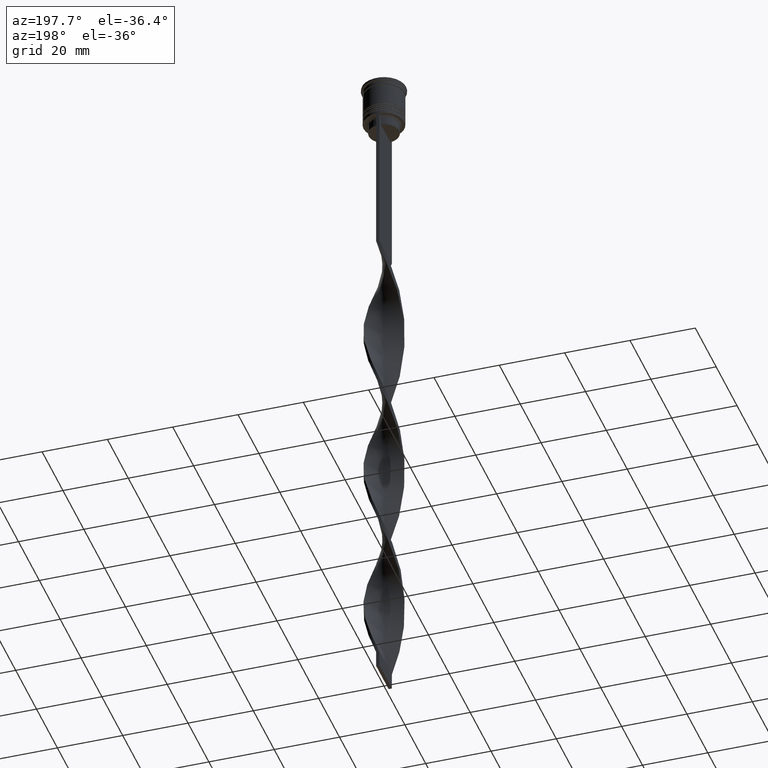
[diagram: clean part render]
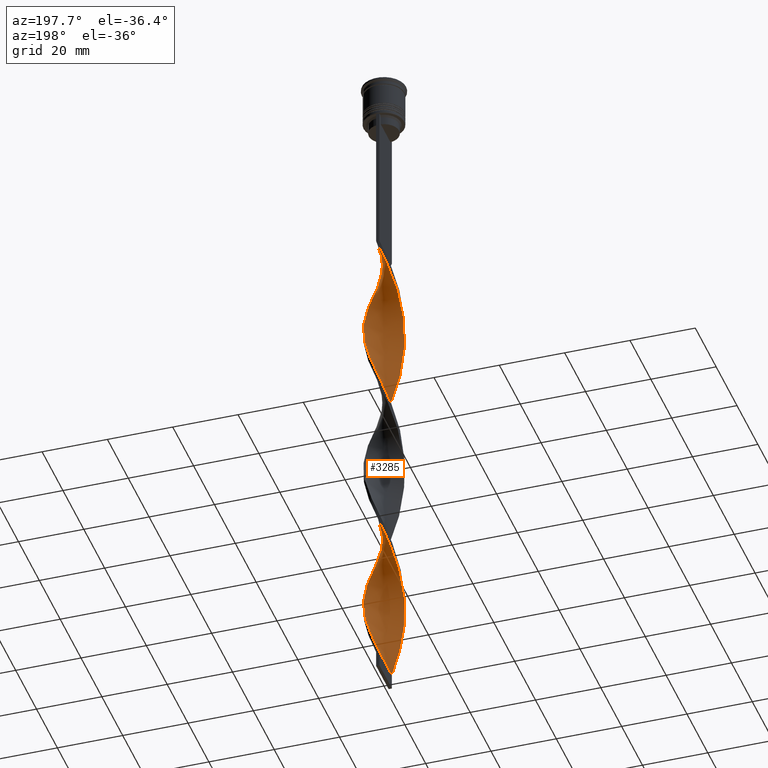
[diagram: same view with one face highlighted and labeled with its STEP entity id]
A machine part, auxiliary view. The second image highlights one B-rep face of the part: STEP entity #3285.
In plain terms, the highlighted face is a freeform B-spline surface patch.
Its self-contained STEP definition (entity closure, byte-faithful):
#3 = CARTESIAN_POINT ( 'NONE',  ( 2.733484409399326687, 5.364518895816362765, -99.40196078431372939 ) ) ;
#8 = CARTESIAN_POINT ( 'NONE',  ( 4.032016302638261607, -4.506007880724164139, -68.72549019607842524 ) ) ;
#16 = CARTESIAN_POINT ( 'NONE',  ( -5.800196826636243586, -1.708502050969748609, -188.5098039215686185 ) ) ;
#22 = CARTESIAN_POINT ( 'NONE',  ( 6.025704593494046080, 0.5021420494578371363, -83.33333333333332860 ) ) ;
#28 = CARTESIAN_POINT ( 'NONE',  ( 4.858813575065529022, 3.599054477032530563, -92.09803921568628482 ) ) ;
#31 = CARTESIAN_POINT ( 'NONE',  ( 5.928270878038555125, 1.051477244927328636, -184.1274509803921546 ) ) ;
#46 = CARTESIAN_POINT ( 'NONE',  ( -1.055981877452179196, 5.953668176878984752, -109.6274509803921404 ) ) ;
#51 = CARTESIAN_POINT ( 'NONE',  ( -6.015373881509669118, 0.6136281867224241404, -130.0784313725490335 ) ) ;
#60 = CARTESIAN_POINT ( 'NONE',  ( -6.015373881509671783, -0.6136281867224271380, -185.5882352941176237 ) ) ;
#65 = CARTESIAN_POINT ( 'NONE',  ( 1.701213882420739232, 5.775454209519709892, -102.3235294117646959 ) ) ;
#81 = CARTESIAN_POINT ( 'NONE',  ( -5.437407565418680200, -2.644969083640990259, -138.8431372549019329 ) ) ;
#87 = CARTESIAN_POINT ( 'NONE',  ( -5.830837162583068611, 1.600812440396822023, -80.41176470588234793 ) ) ;
#98 = CARTESIAN_POINT ( 'NONE',  ( -0.5000000000000009992, -6.000000000000000888, -207.5000000000000000 ) ) ;
#116 = CARTESIAN_POINT ( 'NONE',  ( -5.634122364000871741, -2.122890762018906141, -137.3823529411764639 ) ) ;
#122 = VERTEX_POINT ( 'NONE', #2065 ) ;
#133 = CARTESIAN_POINT ( 'NONE',  ( 1.166039236662764322, 5.933094890902375518, -203.1176470588235361 ) ) ;
#144 = CARTESIAN_POINT ( 'NONE',  ( -0.6110105570574712042, 5.989713357011696715, -160.7549019607842808 ) ) ;
#162 = CARTESIAN_POINT ( 'NONE',  ( 1.593983656741371657, 5.805963839195126930, -154.9117647058823479 ) ) ;
#168 = CARTESIAN_POINT ( 'NONE',  ( 3.672669403269013699, -4.770901325147233862, -119.8529411764705799 ) ) ;
#177 = CARTESIAN_POINT ( 'NONE',  ( 4.114758515918088833, -4.430578386798787349, -121.3137254901960631 ) ) ;
#186 = CARTESIAN_POINT ( 'NONE',  ( -5.593848926018644363, -2.226848488981698626, -90.63725490196078738 ) ) ;
#194 = CARTESIAN_POINT ( 'NONE',  ( -3.672669403269013699, 4.770901325147233862, -169.5196078431372371 ) ) ;
#195 = EDGE_LOOP ( 'NONE', ( #1077, #3382, #3790, #3716 ) ) ;
#204 = CARTESIAN_POINT ( 'NONE',  ( -5.928270878038556013, 1.051477244927329524, -81.87254901960783116 ) ) ;
#211 = CARTESIAN_POINT ( 'NONE',  ( -1.055981877452178086, -5.953668176878989193, -106.7058823529412024 ) ) ;
#226 = CARTESIAN_POINT ( 'NONE',  ( 0.05598187745217893252, -6.046331823121016136, -109.6274509803921404 ) ) ;
#237 = CARTESIAN_POINT ( 'NONE',  ( 5.148110570242104167, 3.122011780336760189, -90.63725490196078738 ) ) ;
#240 = CARTESIAN_POINT ( 'NONE',  ( 5.634122364000871741, 2.122890762018907029, -187.0490196078431211 ) ) ;
#241 =( BOUNDED_CURVE ( )  B_SPLINE_CURVE ( 2, ( #2922, #1488, #2982, #609, #370, #1762, #2943, #2704, #2644, #1160, #930, #1512, #1143, #2082, #2099, #2026, #293, #22, #3578, #3539, #896, #3210, #1781, #1528, #628, #3275, #2066, #3255, #3, #2688, #65, #2963, #2320, #2663, #1451, #46, #1202, #2378, #914, #1800, #1219, #3293, #652, #1819, #3004, #3311, #668, #2412, #951, #1834, #2120, #3592, #3021, #386, #1545, #81, #1234, #2573, #1727, #2053, #2280, #3448, #841, #1129, #525, #543, #1690, #3217, #3506, #1416, #3465, #801, #3154, #559, #259, #2909, #2034, #2651, #276, #2873, #3489, #822, #3243, #877, #1973, #1710, #31, #318, #240, #3524, #1998, #574, #2590, #2890, #1476, #1747, #3800, #1437, #3182, #3760, #2614, #3775, #1187 ),
 .UNSPECIFIED., .F., .F. ) 
 B_SPLINE_CURVE_WITH_KNOTS ( ( 3, 2, 2, 2, 2, 2, 2, 2, 2, 2, 2, 2, 2, 2, 2, 2, 2, 2, 2, 2, 2, 2, 2, 2, 2, 2, 2, 2, 2, 2, 2, 2, 2, 2, 2, 2, 2, 2, 2, 2, 2, 2, 2, 2, 2, 2, 2, 2, 2, 2, 2, 3 ),
 ( 0.000000000000000000, 0.01470588235294117453, 0.02941176470588234906, 0.04411764705882353227, 0.05882352941176469813, 0.07352941176470588480, 0.08823529411764706454, 0.1029411764705882443, 0.1176470588235293963, 0.1323529411764705899, 0.1470588235294117696, 0.1617647058823529493, 0.1764705882352941291, 0.1911764705882352811, 0.2058823529411764885, 0.2205882352941176405, 0.2352941176470587925, 0.2500000000000000000, 0.2647058823529411797, 0.2794117647058823595, 0.2941176470588235392, 0.3088235294117647189, 0.3235294117647058987, 0.3382352941176470229, 0.3529411764705882582, 0.3676470588235294379, 0.3823529411764705621, 0.3970588235294117418, 0.4117647058823529771, 0.4264705882352941013, 0.4411764705882352811, 0.4558823529411764608, 0.4705882352941175850, 0.4852941176470588203, 0.5000000000000000000, 0.5147058823529411242, 0.5294117647058823595, 0.5441176470588234837, 0.5588235294117647189, 0.5735294117647058432, 0.5882352941176470784, 0.6029411764705882026, 0.6176470588235294379, 0.6323529411764705621, 0.6470588235294117974, 0.6617647058823529216, 0.6764705882352940458, 0.6911764705882351700, 0.7058823529411765163, 0.7205882352941176405, 0.7352941176470588758, 0.7500000000000000000 ),
 .UNSPECIFIED. ) 
 CURVE ( )  GEOMETRIC_REPRESENTATION_ITEM ( )  RATIONAL_B_SPLINE_CURVE ( ( 1.000000000000000000, 0.9957341762950344677, 1.000000000000000000, 0.9957341762950344677, 1.000000000000000000, 0.9957341762950344677, 1.000000000000000000, 0.9957341762950344677, 1.000000000000000000, 0.9957341762950344677, 1.000000000000000000, 0.9957341762950344677, 1.000000000000000000, 0.9957341762950344677, 1.000000000000000000, 0.9957341762950344677, 1.000000000000000000, 0.9957341762950344677, 1.000000000000000000, 0.9957341762950344677, 1.000000000000000000, 0.9957341762950344677, 1.000000000000000000, 0.9957341762950344677, 1.000000000000000000, 0.9957341762950344677, 1.000000000000000000, 0.9957341762950344677, 1.000000000000000000, 0.9957341762950344677, 1.000000000000000000, 0.9957341762950344677, 1.000000000000000000, 0.9957341762950344677, 1.000000000000000000, 0.9957341762950344677, 1.000000000000000000, 0.9957341762950344677, 1.000000000000000000, 0.9957341762950344677, 1.000000000000000000, 0.9957341762950344677, 1.000000000000000000, 0.9957341762950344677, 1.000000000000000000, 0.9957341762950344677, 1.000000000000000000, 0.9957341762950344677, 1.000000000000000000, 0.9957341762950344677, 1.000000000000000000, 0.9957341762950344677, 1.000000000000000000, 0.9957341762950344677, 1.000000000000000000, 0.9957341762950344677, 1.000000000000000000, 0.9957341762950344677, 1.000000000000000000, 0.9957341762950344677, 1.000000000000000000, 0.9957341762950344677, 1.000000000000000000, 0.9957341762950344677, 1.000000000000000000, 0.9957341762950344677, 1.000000000000000000, 0.9957341762950344677, 1.000000000000000000, 0.9957341762950344677, 1.000000000000000000, 0.9957341762950344677, 1.000000000000000000, 0.9957341762950344677, 1.000000000000000000, 0.9957341762950344677, 1.000000000000000000, 0.9957341762950344677, 1.000000000000000000, 0.9957341762950344677, 1.000000000000000000, 0.9957341762950344677, 1.000000000000000000, 0.9957341762950344677, 1.000000000000000000, 0.9957341762950344677, 1.000000000000000000, 0.9957341762950344677, 1.000000000000000000, 0.9957341762950344677, 1.000000000000000000, 0.9957341762950344677, 1.000000000000000000, 0.9957341762950344677, 1.000000000000000000, 0.9957341762950344677, 1.000000000000000000, 0.9957341762950344677, 1.000000000000000000, 0.9957341762950344677, 1.000000000000000000, 0.9957341762950344677, 1.000000000000000000 ) ) 
 REPRESENTATION_ITEM ( '' )  );
#246 = CARTESIAN_POINT ( 'NONE',  ( 5.148110570242106832, -3.122011780336759745, -125.6960784313725412 ) ) ;
#256 = CARTESIAN_POINT ( 'NONE',  ( -4.791340338341087524, 3.688403482277188061, -121.3137254901960631 ) ) ;
#259 = CARTESIAN_POINT ( 'NONE',  ( 3.583701545128941124, -4.838086732939006041, -166.5980392156862706 ) ) ;
#265 = CARTESIAN_POINT ( 'NONE',  ( -5.907785354072956352, -1.161065118846087874, -187.0490196078431211 ) ) ;
#273 = CARTESIAN_POINT ( 'NONE',  ( 6.020539237501857599, -0.05574306863229464004, -81.87254901960783116 ) ) ;
#276 = CARTESIAN_POINT ( 'NONE',  ( 5.089420681871065000, -3.216799204635418352, -172.4411764705882035 ) ) ;
#287 = CARTESIAN_POINT ( 'NONE',  ( 3.583701545128945121, 4.838086732939006041, -149.0686274509803866 ) ) ;
#293 = CARTESIAN_POINT ( 'NONE',  ( 6.020539237501857599, -0.05574306863229464004, -81.87254901960783116 ) ) ;
#297 = CARTESIAN_POINT ( 'NONE',  ( -4.032016302638259830, 4.506007880724164139, -118.3921568627451109 ) ) ;
#307 = CARTESIAN_POINT ( 'NONE',  ( -4.411678320489674121, -4.097205681500676100, -195.8137254901960773 ) ) ;
#315 = CARTESIAN_POINT ( 'NONE',  ( 3.135386787619625082, -5.170165585153850607, -65.80392156862747299 ) ) ;
#318 = CARTESIAN_POINT ( 'NONE',  ( 5.830837162583065947, 1.600812440396822023, -185.5882352941176237 ) ) ;
#323 = CARTESIAN_POINT ( 'NONE',  ( -5.593848926018644363, -2.226848488981698626, -189.9705882352941160 ) ) ;
#334 = CARTESIAN_POINT ( 'NONE',  ( 5.387501025401043364, -2.745194926993648643, -173.9019607843137294 ) ) ;
#359 = CARTESIAN_POINT ( 'NONE',  ( 2.236388528178716584, 5.617813528137046042, -200.1960784313725981 ) ) ;
#363 = CARTESIAN_POINT ( 'NONE',  ( -0.6110105570574712042, 5.989713357011696715, -61.42156862745097357 ) ) ;
#370 = CARTESIAN_POINT ( 'NONE',  ( 2.633686111825095377, -5.414212543332557637, -64.34313725490196134 ) ) ;
#386 = CARTESIAN_POINT ( 'NONE',  ( -5.830837162583065947, -1.600812440396822689, -135.9215686274509665 ) ) ;
#404 = CARTESIAN_POINT ( 'NONE',  ( -0.5000000000000004441, -2.000000000000000888, -207.5000000000000000 ) ) ;
#415 = FACE_OUTER_BOUND ( 'NONE', #195, .T. ) ;
#421 = CARTESIAN_POINT ( 'NONE',  ( -2.733484409399329351, -5.364518895816360988, -149.0686274509803866 ) ) ;
#429 = CARTESIAN_POINT ( 'NONE',  ( -4.032016302638262495, -4.506007880724165027, -97.94117647058824616 ) ) ;
#436 = CARTESIAN_POINT ( 'NONE',  ( 1.055981877452178530, -5.953668176878985641, -159.2941176470588118 ) ) ;
#445 = CARTESIAN_POINT ( 'NONE',  ( 3.135386787619624638, 5.170165585153852383, -150.5294117647058840 ) ) ;
#452 = CARTESIAN_POINT ( 'NONE',  ( -3.135386787619625970, -5.170165585153851495, -100.8627450980392126 ) ) ;
#453 = CARTESIAN_POINT ( 'NONE',  ( 0.6110105570574709821, 5.989713357011695827, -204.5784313725490335 ) ) ;
#467 = CARTESIAN_POINT ( 'NONE',  ( -5.800196826636243586, -1.708502050969748609, -89.17647058823527573 ) ) ;
#474 = CARTESIAN_POINT ( 'NONE',  ( -2.733484409399328019, 5.364518895816364541, -67.26470588235292780 ) ) ;
#483 =( BOUNDED_CURVE ( )  B_SPLINE_CURVE ( 2, ( #3381, #1095, #1329, #808, #731, #3397, #474, #2858, #3128, #1646, #3438, #2228, #1660, #747, #3702, #2209, #204, #3087, #1981, #1920, #1051, #2501, #186, #3166, #2518, #3422, #772, #1943, #2838, #452, #1366, #1904, #1078, #2878, #2539, #226, #790, #3144, #1696, #3681, #1390, #2561, #168, #1620, #2800, #3745, #246, #2579, #2269, #3765, #622, #3555, #547, #2374, #1139, #2061, #1447, #3204, #2974, #3250, #2639, #910, #287, #1731, #604, #2288, #846, #1464, #2078, #3495, #2598, #1777, #2915, #2956, #2621, #3511, #2003, #889, #863, #1715, #2684, #2021, #2896, #2938, #3806, #1757, #3269, #60, #265, #16, #323, #3531, #1155, #1173, #307, #3475, #2330, #2315, #1794, #1483, #829, #562, #2038 ),
 .UNSPECIFIED., .F., .F. ) 
 B_SPLINE_CURVE_WITH_KNOTS ( ( 3, 2, 2, 2, 2, 2, 2, 2, 2, 2, 2, 2, 2, 2, 2, 2, 2, 2, 2, 2, 2, 2, 2, 2, 2, 2, 2, 2, 2, 2, 2, 2, 2, 2, 2, 2, 2, 2, 2, 2, 2, 2, 2, 2, 2, 2, 2, 2, 2, 2, 2, 3 ),
 ( 0.000000000000000000, 0.01470588235294117453, 0.02941176470588234906, 0.04411764705882353227, 0.05882352941176469813, 0.07352941176470588480, 0.08823529411764706454, 0.1029411764705882443, 0.1176470588235293963, 0.1323529411764705899, 0.1470588235294117696, 0.1617647058823529493, 0.1764705882352941291, 0.1911764705882352811, 0.2058823529411764885, 0.2205882352941176405, 0.2352941176470587925, 0.2500000000000000000, 0.2647058823529411797, 0.2794117647058823595, 0.2941176470588235392, 0.3088235294117647189, 0.3235294117647058987, 0.3382352941176470229, 0.3529411764705882582, 0.3676470588235294379, 0.3823529411764705621, 0.3970588235294117418, 0.4117647058823529771, 0.4264705882352941013, 0.4411764705882352811, 0.4558823529411764608, 0.4705882352941175850, 0.4852941176470588203, 0.5000000000000000000, 0.5147058823529411242, 0.5294117647058823595, 0.5441176470588234837, 0.5588235294117647189, 0.5735294117647058432, 0.5882352941176470784, 0.6029411764705882026, 0.6176470588235294379, 0.6323529411764705621, 0.6470588235294117974, 0.6617647058823529216, 0.6764705882352940458, 0.6911764705882351700, 0.7058823529411765163, 0.7205882352941176405, 0.7352941176470588758, 0.7500000000000000000 ),
 .UNSPECIFIED. ) 
 CURVE ( )  GEOMETRIC_REPRESENTATION_ITEM ( )  RATIONAL_B_SPLINE_CURVE ( ( 1.000000000000000000, 0.9957341762950344677, 1.000000000000000000, 0.9957341762950344677, 1.000000000000000000, 0.9957341762950344677, 1.000000000000000000, 0.9957341762950344677, 1.000000000000000000, 0.9957341762950344677, 1.000000000000000000, 0.9957341762950344677, 1.000000000000000000, 0.9957341762950344677, 1.000000000000000000, 0.9957341762950344677, 1.000000000000000000, 0.9957341762950344677, 1.000000000000000000, 0.9957341762950344677, 1.000000000000000000, 0.9957341762950344677, 1.000000000000000000, 0.9957341762950344677, 1.000000000000000000, 0.9957341762950344677, 1.000000000000000000, 0.9957341762950344677, 1.000000000000000000, 0.9957341762950344677, 1.000000000000000000, 0.9957341762950344677, 1.000000000000000000, 0.9957341762950344677, 1.000000000000000000, 0.9957341762950344677, 1.000000000000000000, 0.9957341762950344677, 1.000000000000000000, 0.9957341762950344677, 1.000000000000000000, 0.9957341762950344677, 1.000000000000000000, 0.9957341762950344677, 1.000000000000000000, 0.9957341762950344677, 1.000000000000000000, 0.9957341762950344677, 1.000000000000000000, 0.9957341762950344677, 1.000000000000000000, 0.9957341762950344677, 1.000000000000000000, 0.9957341762950344677, 1.000000000000000000, 0.9957341762950344677, 1.000000000000000000, 0.9957341762950344677, 1.000000000000000000, 0.9957341762950344677, 1.000000000000000000, 0.9957341762950344677, 1.000000000000000000, 0.9957341762950344677, 1.000000000000000000, 0.9957341762950344677, 1.000000000000000000, 0.9957341762950344677, 1.000000000000000000, 0.9957341762950344677, 1.000000000000000000, 0.9957341762950344677, 1.000000000000000000, 0.9957341762950344677, 1.000000000000000000, 0.9957341762950344677, 1.000000000000000000, 0.9957341762950344677, 1.000000000000000000, 0.9957341762950344677, 1.000000000000000000, 0.9957341762950344677, 1.000000000000000000, 0.9957341762950344677, 1.000000000000000000, 0.9957341762950344677, 1.000000000000000000, 0.9957341762950344677, 1.000000000000000000, 0.9957341762950344677, 1.000000000000000000, 0.9957341762950344677, 1.000000000000000000, 0.9957341762950344677, 1.000000000000000000, 0.9957341762950344677, 1.000000000000000000, 0.9957341762950344677, 1.000000000000000000, 0.9957341762950344677, 1.000000000000000000, 0.9957341762950344677, 1.000000000000000000 ) ) 
 REPRESENTATION_ITEM ( '' )  );
#485 = CARTESIAN_POINT ( 'NONE',  ( -5.387501025401045140, -2.745194926993649975, -92.09803921568628482 ) ) ;
#502 = CARTESIAN_POINT ( 'NONE',  ( -4.791340338341087524, -3.688403482277189838, -95.01960784313725128 ) ) ;
#521 = CARTESIAN_POINT ( 'NONE',  ( -5.928270878038556013, 1.051477244927329524, -181.2058823529411598 ) ) ;
#525 = CARTESIAN_POINT ( 'NONE',  ( -1.701213882420739676, -5.775454209519709892, -151.9901960784313530 ) ) ;
#533 = VERTEX_POINT ( 'NONE', #579 ) ;
#540 = CARTESIAN_POINT ( 'NONE',  ( -2.131985436030568781, -5.658259501511266443, -203.1176470588235361 ) ) ;
#543 = CARTESIAN_POINT ( 'NONE',  ( -1.166039236662764988, -5.933094890902375518, -153.4509803921568789 ) ) ;
#547 = CARTESIAN_POINT ( 'NONE',  ( 6.020539237501859375, 0.05574306863229182285, -134.4607843137254974 ) ) ;
#556 = CARTESIAN_POINT ( 'NONE',  ( 4.791340338341086635, -3.688403482277188949, -71.64705882352943433 ) ) ;
#559 = CARTESIAN_POINT ( 'NONE',  ( 3.135386787619625082, -5.170165585153850607, -165.1372549019608016 ) ) ;
#562 = CARTESIAN_POINT ( 'NONE',  ( -1.055981877452178308, -5.953668176878988305, -206.0392156862745026 ) ) ;
#571 = CARTESIAN_POINT ( 'NONE',  ( 5.634122364000871741, 2.122890762018907029, -87.71568627450979250 ) ) ;
#574 = CARTESIAN_POINT ( 'NONE',  ( 4.858813575065529022, 3.599054477032530563, -191.4313725490196134 ) ) ;
#579 = CARTESIAN_POINT ( 'NONE',  ( 0.5000000000000002220, 6.000000000000000888, -58.50000000000000000 ) ) ;
#595 = CARTESIAN_POINT ( 'NONE',  ( -2.131985436030567005, 5.658259501511264666, -112.5490196078431495 ) ) ;
#604 = CARTESIAN_POINT ( 'NONE',  ( 2.633686111825096710, 5.414212543332559413, -151.9901960784313530 ) ) ;
#609 = CARTESIAN_POINT ( 'NONE',  ( 2.131985436030567005, -5.658259501511265555, -62.88235294117647101 ) ) ;
#613 = CARTESIAN_POINT ( 'NONE',  ( 3.583701545128941124, -4.838086732939006041, -166.5980392156862706 ) ) ;
#622 = CARTESIAN_POINT ( 'NONE',  ( 5.928270878038556901, -1.051477244927329080, -131.5392156862745310 ) ) ;
#628 = CARTESIAN_POINT ( 'NONE',  ( 4.486786045491808927, 4.014816431915656736, -93.55882352941176805 ) ) ;
#633 = CARTESIAN_POINT ( 'NONE',  ( 5.593848926018642587, -2.226848488981698626, -175.3627450980391984 ) ) ;
#652 = CARTESIAN_POINT ( 'NONE',  ( -4.411678320489672345, 4.097205681500675212, -119.8529411764705799 ) ) ;
#662 = CARTESIAN_POINT ( 'NONE',  ( -3.672669403269013699, 4.770901325147233862, -70.18627450980390847 ) ) ;
#668 = CARTESIAN_POINT ( 'NONE',  ( -5.593848926018643475, 2.226848488981696850, -125.6960784313725412 ) ) ;
#692 = CARTESIAN_POINT ( 'NONE',  ( -6.015373881509670895, -0.6136281867224269160, -86.25490196078432348 ) ) ;
#699 = CARTESIAN_POINT ( 'NONE',  ( -5.593848926018643475, 2.226848488981696850, -125.6960784313725412 ) ) ;
#712 = CARTESIAN_POINT ( 'NONE',  ( 4.858813575065529911, -3.599054477032532340, -124.2352941176470580 ) ) ;
#718 = CARTESIAN_POINT ( 'NONE',  ( -1.166039236662764988, -5.933094890902374630, -153.4509803921568789 ) ) ;
#724 = CARTESIAN_POINT ( 'NONE',  ( 5.800196826636243586, 1.708502050969746833, -138.8431372549019045 ) ) ;
#727 = CARTESIAN_POINT ( 'NONE',  ( 0.5000000000000002220, -6.000000000000000000, -58.50000000000000000 ) ) ;
#731 = CARTESIAN_POINT ( 'NONE',  ( -1.701213882420739676, 5.775454209519711668, -64.34313725490196134 ) ) ;
#732 = CARTESIAN_POINT ( 'NONE',  ( 6.025704593494046080, 0.5021420494578371363, -182.6666666666666572 ) ) ;
#741 = CARTESIAN_POINT ( 'NONE',  ( 0.05598187745217893252, -6.046331823121015248, -109.6274509803921546 ) ) ;
#747 = CARTESIAN_POINT ( 'NONE',  ( -5.437407565418681088, 2.644969083640993368, -77.49019607843136725 ) ) ;
#762 = CARTESIAN_POINT ( 'NONE',  ( -3.583701545128942456, -4.838086732939007817, -99.40196078431372939 ) ) ;
#772 = CARTESIAN_POINT ( 'NONE',  ( -4.411678320489674121, -4.097205681500676100, -96.48039215686274872 ) ) ;
#782 = CARTESIAN_POINT ( 'NONE',  ( -2.131985436030568781, -5.658259501511266443, -103.7843137254901933 ) ) ;
#790 = CARTESIAN_POINT ( 'NONE',  ( 0.6110105570574698719, -5.989713357011695827, -111.0882352941176379 ) ) ;
#798 = CARTESIAN_POINT ( 'NONE',  ( 1.166039236662764322, 5.933094890902375518, -103.7843137254901933 ) ) ;
#801 = CARTESIAN_POINT ( 'NONE',  ( 2.131985436030567005, -5.658259501511265555, -162.2156862745098351 ) ) ;
#808 = CARTESIAN_POINT ( 'NONE',  ( -1.166039236662763434, 5.933094890902378182, -62.88235294117647101 ) ) ;
#817 = CARTESIAN_POINT ( 'NONE',  ( 2.236388528178716584, 5.617813528137046042, -100.8627450980392126 ) ) ;
#822 = CARTESIAN_POINT ( 'NONE',  ( 5.800196826636241809, -1.708502050969748609, -176.8235294117647243 ) ) ;
#829 = CARTESIAN_POINT ( 'NONE',  ( -1.593983656741373212, -5.805963839195126042, -204.5784313725490335 ) ) ;
#838 = CARTESIAN_POINT ( 'NONE',  ( -0.5000000000000009992, -6.000000000000000888, -207.5000000000000000 ) ) ;
#841 = CARTESIAN_POINT ( 'NONE',  ( -2.733484409399329351, -5.364518895816360988, -149.0686274509803866 ) ) ;
#846 = CARTESIAN_POINT ( 'NONE',  ( 1.593983656741371657, 5.805963839195126930, -154.9117647058823479 ) ) ;
#854 = CARTESIAN_POINT ( 'NONE',  ( 3.230580290619939454, 5.111224263495680376, -97.94117647058824616 ) ) ;
#862 =( BOUNDED_SURFACE ( )  B_SPLINE_SURFACE ( 1, 2, ( 
 ( #1844, #2111, #363, #2148, #3305, #2167, #1520, #3605, #662, #3320, #1552, #2129, #3622, #2712, #3030, #87, #2731, #976, #3335, #692, #3690, #467, #2495, #485, #3711, #502, #3066, #429, #762, #1913, #3096, #782, #3391, #211, #2510, #741, #1954, #1668, #2260, #3081, #1301, #1337, #1321, #177, #3135, #712, #2474, #1042, #2528, #1934, #1027, #2218, #3408, #1884, #3671, #724, #2847, #1068, #1596, #1652, #1378, #2769, #3657, #445, #2552, #1613, #162, #3373, #2785, #2202, #144, #1639, #1013, #3118, #3737, #2810, #194, #2827, #1355, #1087, #2187, #2241, #1897, #3430, #521, #3486, #3151, #3462, #2611, #3213, #2570, #2031, #1473, #2323, #1105, #1125, #1146, #2588, #1995, #540, #2630, #2339, #838 ),
 ( #2049, #2277, #3772, #2012, #1398, #315, #3198, #8, #2304, #556, #1724, #2906, #3503, #3797, #1687, #1165, #273, #2947, #3521, #1432, #571, #2648, #237, #28, #1184, #1970, #874, #854, #1742, #817, #3445, #798, #2928, #1456, #2870, #3240, #3757, #595, #3179, #1707, #2887, #297, #1768, #256, #1413, #1273, #699, #3565, #2741, #51, #3057, #2070, #1019, #918, #116, #3547, #3259, #1804, #1873, #1289, #2196, #900, #421, #2802, #1890, #718, #981, #3279, #1206, #436, #1602, #2086, #2360, #1586, #613, #2154, #2445, #2967, #1785, #334, #633, #3383, #3663, #3074, #1494, #732, #1905, #2671, #2487, #2382, #2181, #1567, #2989, #3088, #3365, #2758, #3340, #359, #3628, #133, #453, #2463, #3644 ) ),
 .UNSPECIFIED., .F., .F., .T. ) 
 B_SPLINE_SURFACE_WITH_KNOTS ( ( 2, 2 ),
 ( 3, 2, 2, 2, 2, 2, 2, 2, 2, 2, 2, 2, 2, 2, 2, 2, 2, 2, 2, 2, 2, 2, 2, 2, 2, 2, 2, 2, 2, 2, 2, 2, 2, 2, 2, 2, 2, 2, 2, 2, 2, 2, 2, 2, 2, 2, 2, 2, 2, 2, 2, 3 ),
 ( 0.000000000000000000, 1.000000000000000000 ),
 ( 0.000000000000000000, 0.01470588235294117627, 0.02941176470588235253, 0.04411764705882353227, 0.05882352941176470507, 0.07352941176470588480, 0.08823529411764706454, 0.1029411764705882304, 0.1176470588235294101, 0.1323529411764705899, 0.1470588235294117696, 0.1617647058823529493, 0.1764705882352941291, 0.1911764705882352811, 0.2058823529411764608, 0.2205882352941176405, 0.2352941176470588203, 0.2500000000000000000, 0.2647058823529411797, 0.2794117647058823595, 0.2941176470588235392, 0.3088235294117647189, 0.3235294117647058987, 0.3382352941176470784, 0.3529411764705882582, 0.3676470588235294379, 0.3823529411764705621, 0.3970588235294117418, 0.4117647058823529216, 0.4264705882352941013, 0.4411764705882352811, 0.4558823529411764608, 0.4705882352941176405, 0.4852941176470588203, 0.5000000000000000000, 0.5147058823529411242, 0.5294117647058823595, 0.5441176470588234837, 0.5588235294117647189, 0.5735294117647058432, 0.5882352941176470784, 0.6029411764705882026, 0.6176470588235294379, 0.6323529411764705621, 0.6470588235294117974, 0.6617647058823529216, 0.6764705882352941568, 0.6911764705882352811, 0.7058823529411765163, 0.7205882352941176405, 0.7352941176470588758, 0.7500000000000000000 ),
 .UNSPECIFIED. ) 
 GEOMETRIC_REPRESENTATION_ITEM ( )  RATIONAL_B_SPLINE_SURFACE ( (
 ( 1.000000000000000000, 0.9957341762950344677, 1.000000000000000000, 0.9957341762950344677, 1.000000000000000000, 0.9957341762950344677, 1.000000000000000000, 0.9957341762950344677, 1.000000000000000000, 0.9957341762950344677, 1.000000000000000000, 0.9957341762950344677, 1.000000000000000000, 0.9957341762950344677, 1.000000000000000000, 0.9957341762950344677, 1.000000000000000000, 0.9957341762950344677, 1.000000000000000000, 0.9957341762950344677, 1.000000000000000000, 0.9957341762950344677, 1.000000000000000000, 0.9957341762950344677, 1.000000000000000000, 0.9957341762950344677, 1.000000000000000000, 0.9957341762950344677, 1.000000000000000000, 0.9957341762950344677, 1.000000000000000000, 0.9957341762950344677, 1.000000000000000000, 0.9957341762950344677, 1.000000000000000000, 0.9957341762950344677, 1.000000000000000000, 0.9957341762950344677, 1.000000000000000000, 0.9957341762950344677, 1.000000000000000000, 0.9957341762950344677, 1.000000000000000000, 0.9957341762950344677, 1.000000000000000000, 0.9957341762950344677, 1.000000000000000000, 0.9957341762950344677, 1.000000000000000000, 0.9957341762950344677, 1.000000000000000000, 0.9957341762950344677, 1.000000000000000000, 0.9957341762950344677, 1.000000000000000000, 0.9957341762950344677, 1.000000000000000000, 0.9957341762950344677, 1.000000000000000000, 0.9957341762950344677, 1.000000000000000000, 0.9957341762950344677, 1.000000000000000000, 0.9957341762950344677, 1.000000000000000000, 0.9957341762950344677, 1.000000000000000000, 0.9957341762950344677, 1.000000000000000000, 0.9957341762950344677, 1.000000000000000000, 0.9957341762950344677, 1.000000000000000000, 0.9957341762950344677, 1.000000000000000000, 0.9957341762950344677, 1.000000000000000000, 0.9957341762950344677, 1.000000000000000000, 0.9957341762950344677, 1.000000000000000000, 0.9957341762950344677, 1.000000000000000000, 0.9957341762950344677, 1.000000000000000000, 0.9957341762950344677, 1.000000000000000000, 0.9957341762950344677, 1.000000000000000000, 0.9957341762950344677, 1.000000000000000000, 0.9957341762950344677, 1.000000000000000000, 0.9957341762950344677, 1.000000000000000000, 0.9957341762950344677, 1.000000000000000000, 0.9957341762950344677, 1.000000000000000000, 0.9957341762950344677, 1.000000000000000000, 0.9957341762950344677, 1.000000000000000000),
 ( 1.000000000000000000, 0.9957341762950344677, 1.000000000000000000, 0.9957341762950344677, 1.000000000000000000, 0.9957341762950344677, 1.000000000000000000, 0.9957341762950344677, 1.000000000000000000, 0.9957341762950344677, 1.000000000000000000, 0.9957341762950344677, 1.000000000000000000, 0.9957341762950344677, 1.000000000000000000, 0.9957341762950344677, 1.000000000000000000, 0.9957341762950344677, 1.000000000000000000, 0.9957341762950344677, 1.000000000000000000, 0.9957341762950344677, 1.000000000000000000, 0.9957341762950344677, 1.000000000000000000, 0.9957341762950344677, 1.000000000000000000, 0.9957341762950344677, 1.000000000000000000, 0.9957341762950344677, 1.000000000000000000, 0.9957341762950344677, 1.000000000000000000, 0.9957341762950344677, 1.000000000000000000, 0.9957341762950344677, 1.000000000000000000, 0.9957341762950344677, 1.000000000000000000, 0.9957341762950344677, 1.000000000000000000, 0.9957341762950344677, 1.000000000000000000, 0.9957341762950344677, 1.000000000000000000, 0.9957341762950344677, 1.000000000000000000, 0.9957341762950344677, 1.000000000000000000, 0.9957341762950344677, 1.000000000000000000, 0.9957341762950344677, 1.000000000000000000, 0.9957341762950344677, 1.000000000000000000, 0.9957341762950344677, 1.000000000000000000, 0.9957341762950344677, 1.000000000000000000, 0.9957341762950344677, 1.000000000000000000, 0.9957341762950344677, 1.000000000000000000, 0.9957341762950344677, 1.000000000000000000, 0.9957341762950344677, 1.000000000000000000, 0.9957341762950344677, 1.000000000000000000, 0.9957341762950344677, 1.000000000000000000, 0.9957341762950344677, 1.000000000000000000, 0.9957341762950344677, 1.000000000000000000, 0.9957341762950344677, 1.000000000000000000, 0.9957341762950344677, 1.000000000000000000, 0.9957341762950344677, 1.000000000000000000, 0.9957341762950344677, 1.000000000000000000, 0.9957341762950344677, 1.000000000000000000, 0.9957341762950344677, 1.000000000000000000, 0.9957341762950344677, 1.000000000000000000, 0.9957341762950344677, 1.000000000000000000, 0.9957341762950344677, 1.000000000000000000, 0.9957341762950344677, 1.000000000000000000, 0.9957341762950344677, 1.000000000000000000, 0.9957341762950344677, 1.000000000000000000, 0.9957341762950344677, 1.000000000000000000, 0.9957341762950344677, 1.000000000000000000) ) ) 
 REPRESENTATION_ITEM ( '' )  SURFACE ( )  );
#863 = CARTESIAN_POINT ( 'NONE',  ( -4.486786045491809816, 4.014816431915658512, -172.4411764705882035 ) ) ;
#874 = CARTESIAN_POINT ( 'NONE',  ( 3.672669403269014143, 4.770901325147232086, -96.48039215686274872 ) ) ;
#877 = CARTESIAN_POINT ( 'NONE',  ( 6.015373881509670007, -0.6136281867224262498, -179.7450980392157476 ) ) ;
#889 = CARTESIAN_POINT ( 'NONE',  ( -4.114758515918087944, 4.430578386798787349, -170.9803921568627629 ) ) ;
#896 = CARTESIAN_POINT ( 'NONE',  ( 5.634122364000871741, 2.122890762018907029, -87.71568627450979250 ) ) ;
#900 = CARTESIAN_POINT ( 'NONE',  ( -3.230580290619940342, -5.111224263495679487, -147.6078431372548891 ) ) ;
#910 = CARTESIAN_POINT ( 'NONE',  ( 4.032016302638262495, 4.506007880724165027, -147.6078431372548891 ) ) ;
#914 = CARTESIAN_POINT ( 'NONE',  ( -2.633686111825096265, 5.414212543332556749, -114.0098039215686185 ) ) ;
#918 = CARTESIAN_POINT ( 'NONE',  ( -5.830837162583066835, -1.600812440396822689, -135.9215686274509665 ) ) ;
#930 = CARTESIAN_POINT ( 'NONE',  ( 5.089420681871065000, -3.216799204635418352, -73.10784313725488914 ) ) ;
#951 = CARTESIAN_POINT ( 'NONE',  ( -5.907785354072954576, 1.161065118846088762, -128.6176470588235361 ) ) ;
#976 = CARTESIAN_POINT ( 'NONE',  ( -6.025704593494047856, 0.5021420494578378024, -83.33333333333332860 ) ) ;
#981 = CARTESIAN_POINT ( 'NONE',  ( -0.6110105570574692058, -5.989713357011694939, -154.9117647058823479 ) ) ;
#1013 = CARTESIAN_POINT ( 'NONE',  ( -1.701213882420739676, 5.775454209519711668, -163.6764705882352757 ) ) ;
#1019 = CARTESIAN_POINT ( 'NONE',  ( -5.928270878038555125, -1.051477244927326860, -134.4607843137254974 ) ) ;
#1027 = CARTESIAN_POINT ( 'NONE',  ( 5.928270878038556901, -1.051477244927329080, -131.5392156862745310 ) ) ;
#1042 = CARTESIAN_POINT ( 'NONE',  ( 5.437407565418681088, -2.644969083640992924, -127.1568627450980102 ) ) ;
#1051 = CARTESIAN_POINT ( 'NONE',  ( -5.907785354072956352, -1.161065118846087874, -87.71568627450979250 ) ) ;
#1068 = CARTESIAN_POINT ( 'NONE',  ( 5.387501025401045140, 2.745194926993649087, -141.7647058823529562 ) ) ;
#1077 = ORIENTED_EDGE ( 'NONE', *, *, #3571, .F. ) ;
#1078 = CARTESIAN_POINT ( 'NONE',  ( -1.593983656741373212, -5.805963839195126042, -105.2450980392156765 ) ) ;
#1087 = CARTESIAN_POINT ( 'NONE',  ( -4.858813575065530799, 3.599054477032530563, -173.9019607843137294 ) ) ;
#1090 = EDGE_CURVE ( 'NONE', #1300, #122, #241, .T. ) ;
#1095 = CARTESIAN_POINT ( 'NONE',  ( -0.05598187745217849537, 6.046331823121016136, -59.96078431372549034 ) ) ;
#1105 = CARTESIAN_POINT ( 'NONE',  ( -4.411678320489674121, -4.097205681500676100, -195.8137254901960773 ) ) ;
#1125 = CARTESIAN_POINT ( 'NONE',  ( -4.032016302638262495, -4.506007880724165027, -197.2745098039215463 ) ) ;
#1129 = CARTESIAN_POINT ( 'NONE',  ( -2.236388528178714363, -5.617813528137046042, -150.5294117647058840 ) ) ;
#1139 = CARTESIAN_POINT ( 'NONE',  ( 5.907785354072956352, 1.161065118846087207, -137.3823529411764639 ) ) ;
#1143 = CARTESIAN_POINT ( 'NONE',  ( 5.593848926018642587, -2.226848488981698626, -76.02941176470586981 ) ) ;
#1146 = CARTESIAN_POINT ( 'NONE',  ( -3.583701545128942456, -4.838086732939007817, -198.7352941176470722 ) ) ;
#1155 = CARTESIAN_POINT ( 'NONE',  ( -5.089420681871066776, -3.216799204635418796, -192.8921568627450824 ) ) ;
#1160 = CARTESIAN_POINT ( 'NONE',  ( 4.791340338341086635, -3.688403482277188949, -71.64705882352942012 ) ) ;
#1165 = CARTESIAN_POINT ( 'NONE',  ( 6.015373881509669118, -0.6136281867224262498, -80.41176470588234793 ) ) ;
#1173 = CARTESIAN_POINT ( 'NONE',  ( -4.791340338341087524, -3.688403482277189838, -194.3529411764705799 ) ) ;
#1184 = CARTESIAN_POINT ( 'NONE',  ( 4.486786045491808927, 4.014816431915656736, -93.55882352941176805 ) ) ;
#1187 = CARTESIAN_POINT ( 'NONE',  ( -0.4999999999999994449, 5.999999999999999112, -207.5000000000000000 ) ) ;
#1202 = CARTESIAN_POINT ( 'NONE',  ( -1.593983656741371657, 5.805963839195126042, -111.0882352941176379 ) ) ;
#1206 = CARTESIAN_POINT ( 'NONE',  ( 0.5000000000000002220, -5.999999999999999112, -157.8333333333333144 ) ) ;
#1219 = CARTESIAN_POINT ( 'NONE',  ( -3.583701545128942012, 4.838086732939006041, -116.9313725490195992 ) ) ;
#1234 = CARTESIAN_POINT ( 'NONE',  ( -5.148110570242102391, -3.122011780336762410, -140.3039215686274588 ) ) ;
#1235 = CARTESIAN_POINT ( 'NONE',  ( -0.5000000000000009992, -6.000000000000000888, -207.5000000000000000 ) ) ;
#1273 = CARTESIAN_POINT ( 'NONE',  ( -5.387501025401043364, 2.745194926993649975, -124.2352941176470580 ) ) ;
#1289 = CARTESIAN_POINT ( 'NONE',  ( -4.114758515918085280, -4.430578386798788237, -144.6862745098039227 ) ) ;
#1297 = VERTEX_POINT ( 'NONE', #1235 ) ;
#1300 = VERTEX_POINT ( 'NONE', #2413 ) ;
#1301 = CARTESIAN_POINT ( 'NONE',  ( 2.733484409399328463, -5.364518895816363653, -116.9313725490195992 ) ) ;
#1312 = VECTOR ( 'NONE', #3324, 1000.000000000000000 ) ;
#1321 = CARTESIAN_POINT ( 'NONE',  ( 3.672669403269013699, -4.770901325147233862, -119.8529411764705799 ) ) ;
#1329 = CARTESIAN_POINT ( 'NONE',  ( -0.6110105570574712042, 5.989713357011696715, -61.42156862745097357 ) ) ;
#1337 = CARTESIAN_POINT ( 'NONE',  ( 3.230580290619939010, -5.111224263495682152, -118.3921568627451109 ) ) ;
#1355 = CARTESIAN_POINT ( 'NONE',  ( -4.486786045491809816, 4.014816431915658512, -172.4411764705882035 ) ) ;
#1366 = CARTESIAN_POINT ( 'NONE',  ( -2.633686111825095821, -5.414212543332559413, -102.3235294117646959 ) ) ;
#1378 = CARTESIAN_POINT ( 'NONE',  ( 4.411678320489673233, 4.097205681500676988, -146.1470588235294201 ) ) ;
#1390 = CARTESIAN_POINT ( 'NONE',  ( 2.733484409399328463, -5.364518895816363653, -116.9313725490195992 ) ) ;
#1398 = CARTESIAN_POINT ( 'NONE',  ( 2.633686111825095377, -5.414212543332557637, -64.34313725490196134 ) ) ;
#1413 = CARTESIAN_POINT ( 'NONE',  ( -5.089420681871064112, 3.216799204635418796, -122.7745098039215605 ) ) ;
#1416 = CARTESIAN_POINT ( 'NONE',  ( 1.055981877452178752, -5.953668176878984752, -159.2941176470588118 ) ) ;
#1432 = CARTESIAN_POINT ( 'NONE',  ( 5.830837162583066835, 1.600812440396822023, -86.25490196078432348 ) ) ;
#1437 = CARTESIAN_POINT ( 'NONE',  ( 2.236388528178716140, 5.617813528137045154, -200.1960784313725696 ) ) ;
#1447 = CARTESIAN_POINT ( 'NONE',  ( 5.593848926018644363, 2.226848488981700402, -140.3039215686274588 ) ) ;
#1451 = CARTESIAN_POINT ( 'NONE',  ( -0.4999999999999994449, 5.999999999999999112, -108.1666666666666572 ) ) ;
#1456 = CARTESIAN_POINT ( 'NONE',  ( 0.05598187745217741984, 6.046331823121015248, -106.7058823529412024 ) ) ;
#1464 = CARTESIAN_POINT ( 'NONE',  ( 1.055981877452178974, 5.953668176878988305, -156.3725490196078454 ) ) ;
#1473 = CARTESIAN_POINT ( 'NONE',  ( -5.089420681871066776, -3.216799204635418796, -192.8921568627450824 ) ) ;
#1476 = CARTESIAN_POINT ( 'NONE',  ( 3.672669403269014143, 4.770901325147232086, -195.8137254901960773 ) ) ;
#1483 = CARTESIAN_POINT ( 'NONE',  ( -2.131985436030568781, -5.658259501511267331, -203.1176470588235361 ) ) ;
#1488 = CARTESIAN_POINT ( 'NONE',  ( 1.055981877452178752, -5.953668176878984752, -59.96078431372549034 ) ) ;
#1494 = CARTESIAN_POINT ( 'NONE',  ( 6.020539237501857599, -0.05574306863229464004, -181.2058823529411598 ) ) ;
#1512 = CARTESIAN_POINT ( 'NONE',  ( 5.387501025401043364, -2.745194926993648199, -74.56862745098038658 ) ) ;
#1520 = CARTESIAN_POINT ( 'NONE',  ( -2.733484409399328019, 5.364518895816364541, -67.26470588235292780 ) ) ;
#1528 = CARTESIAN_POINT ( 'NONE',  ( 4.858813575065529022, 3.599054477032530563, -92.09803921568628482 ) ) ;
#1545 = CARTESIAN_POINT ( 'NONE',  ( -5.634122364000871741, -2.122890762018906141, -137.3823529411764639 ) ) ;
#1552 = CARTESIAN_POINT ( 'NONE',  ( -4.486786045491809816, 4.014816431915658512, -73.10784313725488914 ) ) ;
#1567 = CARTESIAN_POINT ( 'NONE',  ( 4.858813575065529022, 3.599054477032530563, -191.4313725490196134 ) ) ;
#1571 = CARTESIAN_POINT ( 'NONE',  ( -0.4999999999999994449, 5.999999999999999112, -207.5000000000000000 ) ) ;
#1586 = CARTESIAN_POINT ( 'NONE',  ( 3.135386787619625082, -5.170165585153850607, -165.1372549019608016 ) ) ;
#1596 = CARTESIAN_POINT ( 'NONE',  ( 5.089420681871067664, 3.216799204635417464, -143.2254901960784537 ) ) ;
#1602 = CARTESIAN_POINT ( 'NONE',  ( 1.593983656741372767, -5.805963839195126042, -160.7549019607842808 ) ) ;
#1613 = CARTESIAN_POINT ( 'NONE',  ( 2.131985436030568781, 5.658259501511265555, -153.4509803921568789 ) ) ;
#1620 = CARTESIAN_POINT ( 'NONE',  ( 4.114758515918088833, -4.430578386798787349, -121.3137254901960773 ) ) ;
#1639 = CARTESIAN_POINT ( 'NONE',  ( -1.166039236662763434, 5.933094890902377294, -162.2156862745098351 ) ) ;
#1646 = CARTESIAN_POINT ( 'NONE',  ( -4.114758515918087944, 4.430578386798787349, -71.64705882352942012 ) ) ;
#1652 = CARTESIAN_POINT ( 'NONE',  ( 4.791340338341086635, 3.688403482277191614, -144.6862745098039227 ) ) ;
#1660 = CARTESIAN_POINT ( 'NONE',  ( -5.148110570242105943, 3.122011780336761522, -76.02941176470586981 ) ) ;
#1668 = CARTESIAN_POINT ( 'NONE',  ( 1.166039236662763434, -5.933094890902377294, -112.5490196078431495 ) ) ;
#1687 = CARTESIAN_POINT ( 'NONE',  ( 5.907785354072954576, -1.161065118846086541, -78.95098039215686470 ) ) ;
#1690 = CARTESIAN_POINT ( 'NONE',  ( -0.6110105570574692058, -5.989713357011694939, -154.9117647058823479 ) ) ;
#1696 = CARTESIAN_POINT ( 'NONE',  ( 1.701213882420741008, -5.775454209519712556, -114.0098039215686185 ) ) ;
#1707 = CARTESIAN_POINT ( 'NONE',  ( -3.135386787619624194, 5.170165585153850607, -115.4705882352940876 ) ) ;
#1710 = CARTESIAN_POINT ( 'NONE',  ( 6.025704593494046080, 0.5021420494578371363, -182.6666666666666856 ) ) ;
#1715 = CARTESIAN_POINT ( 'NONE',  ( -4.858813575065530799, 3.599054477032530563, -173.9019607843137294 ) ) ;
#1724 = CARTESIAN_POINT ( 'NONE',  ( 5.089420681871065000, -3.216799204635418352, -73.10784313725488914 ) ) ;
#1727 = CARTESIAN_POINT ( 'NONE',  ( -4.486786045491809816, -4.014816431915656736, -143.2254901960784537 ) ) ;
#1731 = CARTESIAN_POINT ( 'NONE',  ( 3.135386787619624638, 5.170165585153852383, -150.5294117647058840 ) ) ;
#1742 = CARTESIAN_POINT ( 'NONE',  ( 2.733484409399326687, 5.364518895816362765, -99.40196078431372939 ) ) ;
#1747 = CARTESIAN_POINT ( 'NONE',  ( 3.230580290619939454, 5.111224263495680376, -197.2745098039215463 ) ) ;
#1757 = CARTESIAN_POINT ( 'NONE',  ( -6.025704593494047856, 0.5021420494578378024, -182.6666666666666856 ) ) ;
#1762 = CARTESIAN_POINT ( 'NONE',  ( 3.135386787619625082, -5.170165585153850607, -65.80392156862745878 ) ) ;
#1768 = CARTESIAN_POINT ( 'NONE',  ( -4.411678320489672345, 4.097205681500675212, -119.8529411764705799 ) ) ;
#1777 = CARTESIAN_POINT ( 'NONE',  ( -1.166039236662763434, 5.933094890902378182, -162.2156862745098351 ) ) ;
#1781 = CARTESIAN_POINT ( 'NONE',  ( 5.148110570242104167, 3.122011780336760189, -90.63725490196078738 ) ) ;
#1785 = CARTESIAN_POINT ( 'NONE',  ( 5.089420681871065000, -3.216799204635418352, -172.4411764705882035 ) ) ;
#1794 = CARTESIAN_POINT ( 'NONE',  ( -2.633686111825095821, -5.414212543332559413, -201.6568627450980387 ) ) ;
#1800 = CARTESIAN_POINT ( 'NONE',  ( -3.135386787619624194, 5.170165585153850607, -115.4705882352941018 ) ) ;
#1804 = CARTESIAN_POINT ( 'NONE',  ( -4.858813575065529022, -3.599054477032529675, -141.7647058823529562 ) ) ;
#1819 = CARTESIAN_POINT ( 'NONE',  ( -4.791340338341087524, 3.688403482277188061, -121.3137254901960773 ) ) ;
#1834 = CARTESIAN_POINT ( 'NONE',  ( -6.015373881509670007, 0.6136281867224241404, -130.0784313725490335 ) ) ;
#1844 = CARTESIAN_POINT ( 'NONE',  ( 0.5000000000000002220, 6.000000000000000888, -58.50000000000000000 ) ) ;
#1873 = CARTESIAN_POINT ( 'NONE',  ( -4.486786045491809816, -4.014816431915656736, -143.2254901960784537 ) ) ;
#1884 = CARTESIAN_POINT ( 'NONE',  ( 6.015373881509670895, 0.6136281867224275821, -135.9215686274509665 ) ) ;
#1890 = CARTESIAN_POINT ( 'NONE',  ( -1.701213882420739676, -5.775454209519709892, -151.9901960784313530 ) ) ;
#1897 = CARTESIAN_POINT ( 'NONE',  ( -5.634122364000873517, 2.122890762018907029, -178.2843137254901933 ) ) ;
#1904 = CARTESIAN_POINT ( 'NONE',  ( -2.131985436030568781, -5.658259501511267331, -103.7843137254901791 ) ) ;
#1905 = CARTESIAN_POINT ( 'NONE',  ( 5.928270878038555125, 1.051477244927328636, -184.1274509803921546 ) ) ;
#1913 = CARTESIAN_POINT ( 'NONE',  ( -3.135386787619626414, -5.170165585153851495, -100.8627450980392126 ) ) ;
#1920 = CARTESIAN_POINT ( 'NONE',  ( -6.015373881509671783, -0.6136281867224271380, -86.25490196078432348 ) ) ;
#1934 = CARTESIAN_POINT ( 'NONE',  ( 5.830837162583069500, -1.600812440396820246, -130.0784313725490335 ) ) ;
#1943 = CARTESIAN_POINT ( 'NONE',  ( -4.032016302638261607, -4.506007880724165027, -97.94117647058824616 ) ) ;
#1954 = CARTESIAN_POINT ( 'NONE',  ( 0.6110105570574698719, -5.989713357011695827, -111.0882352941176379 ) ) ;
#1970 = CARTESIAN_POINT ( 'NONE',  ( 4.114758515918087056, 4.430578386798786461, -95.01960784313725128 ) ) ;
#1973 = CARTESIAN_POINT ( 'NONE',  ( 6.020539237501857599, -0.05574306863229464004, -181.2058823529411598 ) ) ;
#1981 = CARTESIAN_POINT ( 'NONE',  ( -6.020539237501859375, -0.05574306863229388370, -84.79411764705882604 ) ) ;
#1995 = CARTESIAN_POINT ( 'NONE',  ( -2.633686111825095821, -5.414212543332559413, -201.6568627450980387 ) ) ;
#1998 = CARTESIAN_POINT ( 'NONE',  ( 5.148110570242104167, 3.122011780336760189, -189.9705882352941160 ) ) ;
#2003 = CARTESIAN_POINT ( 'NONE',  ( -3.672669403269013699, 4.770901325147233862, -169.5196078431372371 ) ) ;
#2012 = CARTESIAN_POINT ( 'NONE',  ( 2.131985436030567005, -5.658259501511264666, -62.88235294117647811 ) ) ;
#2021 = CARTESIAN_POINT ( 'NONE',  ( -5.437407565418681088, 2.644969083640993368, -176.8235294117647243 ) ) ;
#2026 = CARTESIAN_POINT ( 'NONE',  ( 6.015373881509670007, -0.6136281867224262498, -80.41176470588234793 ) ) ;
#2031 = CARTESIAN_POINT ( 'NONE',  ( -5.387501025401045140, -2.745194926993649975, -191.4313725490196134 ) ) ;
#2034 = CARTESIAN_POINT ( 'NONE',  ( 4.411678320489672345, -4.097205681500675212, -169.5196078431372371 ) ) ;
#2038 = CARTESIAN_POINT ( 'NONE',  ( -0.5000000000000009992, -6.000000000000000888, -207.5000000000000000 ) ) ;
#2049 = CARTESIAN_POINT ( 'NONE',  ( 0.5000000000000002220, -5.999999999999999112, -58.50000000000000000 ) ) ;
#2053 = CARTESIAN_POINT ( 'NONE',  ( -4.114758515918085280, -4.430578386798788237, -144.6862745098039227 ) ) ;
#2061 = CARTESIAN_POINT ( 'NONE',  ( 5.800196826636243586, 1.708502050969746833, -138.8431372549019329 ) ) ;
#2065 = CARTESIAN_POINT ( 'NONE',  ( -0.4999999999999994449, 5.999999999999999112, -207.5000000000000000 ) ) ;
#2066 = CARTESIAN_POINT ( 'NONE',  ( 3.672669403269014143, 4.770901325147232086, -96.48039215686274872 ) ) ;
#2070 = CARTESIAN_POINT ( 'NONE',  ( -6.025704593494046080, -0.5021420494578363591, -133.0000000000000000 ) ) ;
#2078 = CARTESIAN_POINT ( 'NONE',  ( 0.5000000000000002220, 6.000000000000000888, -157.8333333333333144 ) ) ;
#2082 = CARTESIAN_POINT ( 'NONE',  ( 5.800196826636241809, -1.708502050969748609, -77.49019607843136725 ) ) ;
#2086 = CARTESIAN_POINT ( 'NONE',  ( 2.131985436030567005, -5.658259501511264666, -162.2156862745098351 ) ) ;
#2099 = CARTESIAN_POINT ( 'NONE',  ( 5.907785354072954576, -1.161065118846086541, -78.95098039215686470 ) ) ;
#2111 = CARTESIAN_POINT ( 'NONE',  ( -0.05598187745217849537, 6.046331823121015248, -59.96078431372549744 ) ) ;
#2120 = CARTESIAN_POINT ( 'NONE',  ( -6.020539237501857599, 0.05574306863229388370, -131.5392156862745310 ) ) ;
#2128 = B_SPLINE_CURVE_WITH_KNOTS ( 'NONE', 3,
 ( #98, #404, #2434, #1571 ),
 .UNSPECIFIED., .F., .F.,
 ( 4, 4 ),
 ( 0.000000000000000000, 1.000000000000000000 ),
 .UNSPECIFIED. ) ;
#2129 = CARTESIAN_POINT ( 'NONE',  ( -4.858813575065530799, 3.599054477032530563, -74.56862745098038658 ) ) ;
#2148 = CARTESIAN_POINT ( 'NONE',  ( -1.166039236662763434, 5.933094890902377294, -62.88235294117647811 ) ) ;
#2154 = CARTESIAN_POINT ( 'NONE',  ( 4.032016302638261607, -4.506007880724164139, -168.0588235294117680 ) ) ;
#2167 = CARTESIAN_POINT ( 'NONE',  ( -2.236388528178716584, 5.617813528137047818, -65.80392156862747299 ) ) ;
#2181 = CARTESIAN_POINT ( 'NONE',  ( 5.148110570242104167, 3.122011780336760189, -189.9705882352941160 ) ) ;
#2187 = CARTESIAN_POINT ( 'NONE',  ( -5.148110570242105943, 3.122011780336761522, -175.3627450980391984 ) ) ;
#2196 = CARTESIAN_POINT ( 'NONE',  ( -3.672669403269011923, -4.770901325147233862, -146.1470588235294201 ) ) ;
#2202 = CARTESIAN_POINT ( 'NONE',  ( -0.05598187745217849537, 6.046331823121015248, -159.2941176470588118 ) ) ;
#2209 = CARTESIAN_POINT ( 'NONE',  ( -5.830837162583067723, 1.600812440396822023, -80.41176470588234793 ) ) ;
#2218 = CARTESIAN_POINT ( 'NONE',  ( 6.025704593494047856, -0.5021420494578385796, -133.0000000000000000 ) ) ;
#2228 = CARTESIAN_POINT ( 'NONE',  ( -4.858813575065530799, 3.599054477032530563, -74.56862745098038658 ) ) ;
#2241 = CARTESIAN_POINT ( 'NONE',  ( -5.437407565418681088, 2.644969083640993368, -176.8235294117647243 ) ) ;
#2260 = CARTESIAN_POINT ( 'NONE',  ( 1.701213882420741008, -5.775454209519712556, -114.0098039215686185 ) ) ;
#2269 = CARTESIAN_POINT ( 'NONE',  ( 5.634122364000873517, -2.122890762018908362, -128.6176470588235361 ) ) ;
#2277 = CARTESIAN_POINT ( 'NONE',  ( 1.055981877452178530, -5.953668176878985641, -59.96078431372549744 ) ) ;
#2280 = CARTESIAN_POINT ( 'NONE',  ( -3.672669403269011923, -4.770901325147233862, -146.1470588235294201 ) ) ;
#2288 = CARTESIAN_POINT ( 'NONE',  ( 2.131985436030569225, 5.658259501511266443, -153.4509803921568789 ) ) ;
#2304 = CARTESIAN_POINT ( 'NONE',  ( 4.411678320489672345, -4.097205681500675212, -70.18627450980390847 ) ) ;
#2315 = CARTESIAN_POINT ( 'NONE',  ( -3.135386787619625970, -5.170165585153851495, -200.1960784313725696 ) ) ;
#2320 = CARTESIAN_POINT ( 'NONE',  ( 0.6110105570574709821, 5.989713357011695827, -105.2450980392156765 ) ) ;
#2323 = CARTESIAN_POINT ( 'NONE',  ( -4.791340338341087524, -3.688403482277189838, -194.3529411764705799 ) ) ;
#2330 = CARTESIAN_POINT ( 'NONE',  ( -3.583701545128942456, -4.838086732939007817, -198.7352941176470722 ) ) ;
#2339 = CARTESIAN_POINT ( 'NONE',  ( -1.055981877452178086, -5.953668176878989193, -206.0392156862745026 ) ) ;
#2360 = CARTESIAN_POINT ( 'NONE',  ( 2.633686111825095377, -5.414212543332557637, -163.6764705882352757 ) ) ;
#2374 = CARTESIAN_POINT ( 'NONE',  ( 6.015373881509671783, 0.6136281867224275821, -135.9215686274509665 ) ) ;
#2378 = CARTESIAN_POINT ( 'NONE',  ( -2.131985436030567005, 5.658259501511265555, -112.5490196078431495 ) ) ;
#2382 = CARTESIAN_POINT ( 'NONE',  ( 5.437407565418679312, 2.644969083640992036, -188.5098039215686185 ) ) ;
#2387 = EDGE_CURVE ( 'NONE', #1297, #122, #2128, .T. ) ;
#2412 = CARTESIAN_POINT ( 'NONE',  ( -5.800196826636241809, 1.708502050969748165, -127.1568627450980244 ) ) ;
#2413 = CARTESIAN_POINT ( 'NONE',  ( 0.5000000000000002220, -5.999999999999999112, -58.50000000000000000 ) ) ;
#2434 = CARTESIAN_POINT ( 'NONE',  ( -0.5000000000000000000, 1.999999999999999112, -207.5000000000000000 ) ) ;
#2443 = LINE ( 'NONE', #727, #1312 ) ;
#2445 = CARTESIAN_POINT ( 'NONE',  ( 4.411678320489672345, -4.097205681500675212, -169.5196078431372371 ) ) ;
#2463 = CARTESIAN_POINT ( 'NONE',  ( 0.05598187745217741984, 6.046331823121015248, -206.0392156862745026 ) ) ;
#2474 = CARTESIAN_POINT ( 'NONE',  ( 5.148110570242106832, -3.122011780336759745, -125.6960784313725412 ) ) ;
#2487 = CARTESIAN_POINT ( 'NONE',  ( 5.634122364000871741, 2.122890762018907029, -187.0490196078431211 ) ) ;
#2495 = CARTESIAN_POINT ( 'NONE',  ( -5.593848926018644363, -2.226848488981698626, -90.63725490196078738 ) ) ;
#2497 = EDGE_CURVE ( 'NONE', #533, #1297, #483, .T. ) ;
#2501 = CARTESIAN_POINT ( 'NONE',  ( -5.800196826636243586, -1.708502050969748609, -89.17647058823528994 ) ) ;
#2510 = CARTESIAN_POINT ( 'NONE',  ( -0.5000000000000009992, -6.000000000000000888, -108.1666666666666572 ) ) ;
#2518 = CARTESIAN_POINT ( 'NONE',  ( -5.089420681871066776, -3.216799204635418796, -93.55882352941176805 ) ) ;
#2528 = CARTESIAN_POINT ( 'NONE',  ( 5.634122364000873517, -2.122890762018908362, -128.6176470588235361 ) ) ;
#2539 = CARTESIAN_POINT ( 'NONE',  ( -0.5000000000000009992, -6.000000000000000888, -108.1666666666666572 ) ) ;
#2552 = CARTESIAN_POINT ( 'NONE',  ( 2.633686111825096710, 5.414212543332559413, -151.9901960784313530 ) ) ;
#2561 = CARTESIAN_POINT ( 'NONE',  ( 3.230580290619939010, -5.111224263495682152, -118.3921568627451109 ) ) ;
#2570 = CARTESIAN_POINT ( 'NONE',  ( -5.593848926018644363, -2.226848488981698626, -189.9705882352941160 ) ) ;
#2573 = CARTESIAN_POINT ( 'NONE',  ( -4.858813575065529022, -3.599054477032529675, -141.7647058823529562 ) ) ;
#2579 = CARTESIAN_POINT ( 'NONE',  ( 5.437407565418681088, -2.644969083640992924, -127.1568627450980244 ) ) ;
#2588 = CARTESIAN_POINT ( 'NONE',  ( -3.135386787619626414, -5.170165585153851495, -200.1960784313725981 ) ) ;
#2590 = CARTESIAN_POINT ( 'NONE',  ( 4.486786045491808927, 4.014816431915656736, -192.8921568627450824 ) ) ;
#2598 = CARTESIAN_POINT ( 'NONE',  ( -0.6110105570574712042, 5.989713357011696715, -160.7549019607842808 ) ) ;
#2611 = CARTESIAN_POINT ( 'NONE',  ( -5.907785354072956352, -1.161065118846087874, -187.0490196078431211 ) ) ;
#2614 = CARTESIAN_POINT ( 'NONE',  ( 0.6110105570574709821, 5.989713357011695827, -204.5784313725490335 ) ) ;
#2621 = CARTESIAN_POINT ( 'NONE',  ( -2.733484409399328019, 5.364518895816364541, -166.5980392156862706 ) ) ;
#2630 = CARTESIAN_POINT ( 'NONE',  ( -1.593983656741373212, -5.805963839195126042, -204.5784313725490335 ) ) ;
#2639 = CARTESIAN_POINT ( 'NONE',  ( 4.411678320489673233, 4.097205681500676988, -146.1470588235294201 ) ) ;
#2644 = CARTESIAN_POINT ( 'NONE',  ( 4.411678320489672345, -4.097205681500675212, -70.18627450980390847 ) ) ;
#2648 = CARTESIAN_POINT ( 'NONE',  ( 5.437407565418679312, 2.644969083640992036, -89.17647058823527573 ) ) ;
#2651 = CARTESIAN_POINT ( 'NONE',  ( 4.791340338341086635, -3.688403482277188949, -170.9803921568627629 ) ) ;
#2663 = CARTESIAN_POINT ( 'NONE',  ( 0.05598187745217741290, 6.046331823121016136, -106.7058823529411882 ) ) ;
#2671 = CARTESIAN_POINT ( 'NONE',  ( 5.830837162583066835, 1.600812440396822023, -185.5882352941176237 ) ) ;
#2684 = CARTESIAN_POINT ( 'NONE',  ( -5.148110570242105943, 3.122011780336761522, -175.3627450980391984 ) ) ;
#2688 = CARTESIAN_POINT ( 'NONE',  ( 2.236388528178716140, 5.617813528137045154, -100.8627450980392126 ) ) ;
#2704 = CARTESIAN_POINT ( 'NONE',  ( 4.032016302638260719, -4.506007880724164139, -68.72549019607842524 ) ) ;
#2712 = CARTESIAN_POINT ( 'NONE',  ( -5.437407565418681088, 2.644969083640993368, -77.49019607843138147 ) ) ;
#2731 = CARTESIAN_POINT ( 'NONE',  ( -5.928270878038556013, 1.051477244927329524, -81.87254901960783116 ) ) ;
#2741 = CARTESIAN_POINT ( 'NONE',  ( -5.907785354072954576, 1.161065118846088762, -128.6176470588235361 ) ) ;
#2758 = CARTESIAN_POINT ( 'NONE',  ( 3.230580290619939454, 5.111224263495680376, -197.2745098039215463 ) ) ;
#2769 = CARTESIAN_POINT ( 'NONE',  ( 4.032016302638263383, 4.506007880724165027, -147.6078431372548891 ) ) ;
#2785 = CARTESIAN_POINT ( 'NONE',  ( 0.5000000000000002220, 6.000000000000000888, -157.8333333333333144 ) ) ;
#2800 = CARTESIAN_POINT ( 'NONE',  ( 4.486786045491808927, -4.014816431915659400, -122.7745098039215605 ) ) ;
#2802 = CARTESIAN_POINT ( 'NONE',  ( -2.236388528178714807, -5.617813528137046930, -150.5294117647058840 ) ) ;
#2810 = CARTESIAN_POINT ( 'NONE',  ( -3.230580290619940786, 5.111224263495681264, -168.0588235294117680 ) ) ;
#2827 = CARTESIAN_POINT ( 'NONE',  ( -4.114758515918087944, 4.430578386798787349, -170.9803921568627629 ) ) ;
#2838 = CARTESIAN_POINT ( 'NONE',  ( -3.583701545128942456, -4.838086732939007817, -99.40196078431372939 ) ) ;
#2847 = CARTESIAN_POINT ( 'NONE',  ( 5.593848926018644363, 2.226848488981700402, -140.3039215686274588 ) ) ;
#2858 = CARTESIAN_POINT ( 'NONE',  ( -3.230580290619940786, 5.111224263495681264, -68.72549019607842524 ) ) ;
#2870 = CARTESIAN_POINT ( 'NONE',  ( -0.4999999999999994449, 5.999999999999999112, -108.1666666666666572 ) ) ;
#2873 = CARTESIAN_POINT ( 'NONE',  ( 5.387501025401043364, -2.745194926993648199, -173.9019607843137294 ) ) ;
#2878 = CARTESIAN_POINT ( 'NONE',  ( -1.055981877452178308, -5.953668176878988305, -106.7058823529411882 ) ) ;
#2887 = CARTESIAN_POINT ( 'NONE',  ( -3.583701545128942012, 4.838086732939006041, -116.9313725490195992 ) ) ;
#2890 = CARTESIAN_POINT ( 'NONE',  ( 4.114758515918087056, 4.430578386798786461, -194.3529411764705799 ) ) ;
#2896 = CARTESIAN_POINT ( 'NONE',  ( -5.634122364000873517, 2.122890762018907029, -178.2843137254901933 ) ) ;
#2906 = CARTESIAN_POINT ( 'NONE',  ( 5.387501025401043364, -2.745194926993648643, -74.56862745098038658 ) ) ;
#2909 = CARTESIAN_POINT ( 'NONE',  ( 4.032016302638260719, -4.506007880724164139, -168.0588235294117680 ) ) ;
#2915 = CARTESIAN_POINT ( 'NONE',  ( -1.701213882420739676, 5.775454209519711668, -163.6764705882352757 ) ) ;
#2922 = CARTESIAN_POINT ( 'NONE',  ( 0.5000000000000002220, -5.999999999999999112, -58.50000000000000000 ) ) ;
#2928 = CARTESIAN_POINT ( 'NONE',  ( 0.6110105570574709821, 5.989713357011695827, -105.2450980392156765 ) ) ;
#2938 = CARTESIAN_POINT ( 'NONE',  ( -5.830837162583067723, 1.600812440396822023, -179.7450980392157476 ) ) ;
#2943 = CARTESIAN_POINT ( 'NONE',  ( 3.583701545128941124, -4.838086732939006041, -67.26470588235292780 ) ) ;
#2947 = CARTESIAN_POINT ( 'NONE',  ( 6.025704593494046080, 0.5021420494578371363, -83.33333333333332860 ) ) ;
#2956 = CARTESIAN_POINT ( 'NONE',  ( -2.236388528178716140, 5.617813528137047818, -165.1372549019608016 ) ) ;
#2963 = CARTESIAN_POINT ( 'NONE',  ( 1.166039236662764322, 5.933094890902376406, -103.7843137254901791 ) ) ;
#2967 = CARTESIAN_POINT ( 'NONE',  ( 4.791340338341086635, -3.688403482277188949, -170.9803921568627629 ) ) ;
#2974 = CARTESIAN_POINT ( 'NONE',  ( 5.089420681871067664, 3.216799204635417464, -143.2254901960784537 ) ) ;
#2982 = CARTESIAN_POINT ( 'NONE',  ( 1.593983656741372767, -5.805963839195126042, -61.42156862745097357 ) ) ;
#2989 = CARTESIAN_POINT ( 'NONE',  ( 4.486786045491808927, 4.014816431915656736, -192.8921568627450824 ) ) ;
#3004 = CARTESIAN_POINT ( 'NONE',  ( -5.089420681871064112, 3.216799204635418796, -122.7745098039215605 ) ) ;
#3021 = CARTESIAN_POINT ( 'NONE',  ( -5.928270878038555125, -1.051477244927326860, -134.4607843137254974 ) ) ;
#3030 = CARTESIAN_POINT ( 'NONE',  ( -5.634122364000873517, 2.122890762018907029, -78.95098039215686470 ) ) ;
#3057 = CARTESIAN_POINT ( 'NONE',  ( -6.020539237501857599, 0.05574306863229388370, -131.5392156862745310 ) ) ;
#3066 = CARTESIAN_POINT ( 'NONE',  ( -4.411678320489674121, -4.097205681500676100, -96.48039215686274872 ) ) ;
#3074 = CARTESIAN_POINT ( 'NONE',  ( 6.015373881509669118, -0.6136281867224262498, -179.7450980392157192 ) ) ;
#3081 = CARTESIAN_POINT ( 'NONE',  ( 2.236388528178716140, -5.617813528137047818, -115.4705882352940876 ) ) ;
#3087 = CARTESIAN_POINT ( 'NONE',  ( -6.025704593494047856, 0.5021420494578378024, -83.33333333333332860 ) ) ;
#3088 = CARTESIAN_POINT ( 'NONE',  ( 4.114758515918087056, 4.430578386798786461, -194.3529411764705799 ) ) ;
#3096 = CARTESIAN_POINT ( 'NONE',  ( -2.633686111825095821, -5.414212543332559413, -102.3235294117646959 ) ) ;
#3118 = CARTESIAN_POINT ( 'NONE',  ( -2.236388528178716584, 5.617813528137047818, -165.1372549019608016 ) ) ;
#3128 = CARTESIAN_POINT ( 'NONE',  ( -3.672669403269013699, 4.770901325147233862, -70.18627450980390847 ) ) ;
#3135 = CARTESIAN_POINT ( 'NONE',  ( 4.486786045491808927, -4.014816431915659400, -122.7745098039215605 ) ) ;
#3144 = CARTESIAN_POINT ( 'NONE',  ( 1.166039236662763434, -5.933094890902378182, -112.5490196078431495 ) ) ;
#3151 = CARTESIAN_POINT ( 'NONE',  ( -6.020539237501859375, -0.05574306863229388370, -184.1274509803921546 ) ) ;
#3154 = CARTESIAN_POINT ( 'NONE',  ( 2.633686111825095377, -5.414212543332557637, -163.6764705882352757 ) ) ;
#3166 = CARTESIAN_POINT ( 'NONE',  ( -5.387501025401045140, -2.745194926993649975, -92.09803921568628482 ) ) ;
#3179 = CARTESIAN_POINT ( 'NONE',  ( -2.633686111825096265, 5.414212543332556749, -114.0098039215686185 ) ) ;
#3182 = CARTESIAN_POINT ( 'NONE',  ( 1.701213882420739232, 5.775454209519709892, -201.6568627450980387 ) ) ;
#3198 = CARTESIAN_POINT ( 'NONE',  ( 3.583701545128941124, -4.838086732939006041, -67.26470588235292780 ) ) ;
#3204 = CARTESIAN_POINT ( 'NONE',  ( 5.387501025401045140, 2.745194926993649087, -141.7647058823529562 ) ) ;
#3210 = CARTESIAN_POINT ( 'NONE',  ( 5.437407565418680200, 2.644969083640992036, -89.17647058823528994 ) ) ;
#3213 = CARTESIAN_POINT ( 'NONE',  ( -5.800196826636243586, -1.708502050969748609, -188.5098039215686185 ) ) ;
#3217 = CARTESIAN_POINT ( 'NONE',  ( -0.05598187745217816924, -6.046331823121016136, -156.3725490196078454 ) ) ;
#3240 = CARTESIAN_POINT ( 'NONE',  ( -1.055981877452178974, 5.953668176878985641, -109.6274509803921546 ) ) ;
#3243 = CARTESIAN_POINT ( 'NONE',  ( 5.907785354072954576, -1.161065118846086541, -178.2843137254901933 ) ) ;
#3250 = CARTESIAN_POINT ( 'NONE',  ( 4.791340338341086635, 3.688403482277191614, -144.6862745098039227 ) ) ;
#3255 = CARTESIAN_POINT ( 'NONE',  ( 3.230580290619939454, 5.111224263495680376, -97.94117647058824616 ) ) ;
#3259 = CARTESIAN_POINT ( 'NONE',  ( -5.148110570242102391, -3.122011780336762410, -140.3039215686274588 ) ) ;
#3269 = CARTESIAN_POINT ( 'NONE',  ( -6.020539237501859375, -0.05574306863229388370, -184.1274509803921546 ) ) ;
#3275 = CARTESIAN_POINT ( 'NONE',  ( 4.114758515918087056, 4.430578386798786461, -95.01960784313726549 ) ) ;
#3279 = CARTESIAN_POINT ( 'NONE',  ( -0.05598187745217816924, -6.046331823121015248, -156.3725490196078454 ) ) ;
#3285 = ADVANCED_FACE ( 'NONE', ( #415 ), #862, .T. ) ;
#3293 = CARTESIAN_POINT ( 'NONE',  ( -4.032016302638258942, 4.506007880724164139, -118.3921568627451109 ) ) ;
#3305 = CARTESIAN_POINT ( 'NONE',  ( -1.701213882420739676, 5.775454209519711668, -64.34313725490196134 ) ) ;
#3311 = CARTESIAN_POINT ( 'NONE',  ( -5.387501025401043364, 2.745194926993649975, -124.2352941176470580 ) ) ;
#3320 = CARTESIAN_POINT ( 'NONE',  ( -4.114758515918087944, 4.430578386798787349, -71.64705882352943433 ) ) ;
#3324 = DIRECTION ( 'NONE',  ( 0.000000000000000000, 1.000000000000000000, 0.000000000000000000 ) ) ;
#3335 = CARTESIAN_POINT ( 'NONE',  ( -6.020539237501859375, -0.05574306863229388370, -84.79411764705882604 ) ) ;
#3340 = CARTESIAN_POINT ( 'NONE',  ( 2.733484409399326687, 5.364518895816362765, -198.7352941176470722 ) ) ;
#3365 = CARTESIAN_POINT ( 'NONE',  ( 3.672669403269014143, 4.770901325147232086, -195.8137254901960773 ) ) ;
#3373 = CARTESIAN_POINT ( 'NONE',  ( 1.055981877452178752, 5.953668176878989193, -156.3725490196078454 ) ) ;
#3381 = CARTESIAN_POINT ( 'NONE',  ( 0.5000000000000002220, 6.000000000000000888, -58.50000000000000000 ) ) ;
#3382 = ORIENTED_EDGE ( 'NONE', *, *, #1090, .T. ) ;
#3383 = CARTESIAN_POINT ( 'NONE',  ( 5.800196826636241809, -1.708502050969748609, -176.8235294117647243 ) ) ;
#3391 = CARTESIAN_POINT ( 'NONE',  ( -1.593983656741373212, -5.805963839195126042, -105.2450980392156765 ) ) ;
#3397 = CARTESIAN_POINT ( 'NONE',  ( -2.236388528178716140, 5.617813528137047818, -65.80392156862745878 ) ) ;
#3408 = CARTESIAN_POINT ( 'NONE',  ( 6.020539237501859375, 0.05574306863229182285, -134.4607843137254974 ) ) ;
#3422 = CARTESIAN_POINT ( 'NONE',  ( -4.791340338341087524, -3.688403482277189838, -95.01960784313726549 ) ) ;
#3430 = CARTESIAN_POINT ( 'NONE',  ( -5.830837162583068611, 1.600812440396822023, -179.7450980392157192 ) ) ;
#3438 = CARTESIAN_POINT ( 'NONE',  ( -4.486786045491809816, 4.014816431915658512, -73.10784313725488914 ) ) ;
#3445 = CARTESIAN_POINT ( 'NONE',  ( 1.701213882420739232, 5.775454209519709892, -102.3235294117646959 ) ) ;
#3448 = CARTESIAN_POINT ( 'NONE',  ( -3.230580290619940342, -5.111224263495679487, -147.6078431372548891 ) ) ;
#3462 = CARTESIAN_POINT ( 'NONE',  ( -6.015373881509670895, -0.6136281867224269160, -185.5882352941176237 ) ) ;
#3465 = CARTESIAN_POINT ( 'NONE',  ( 1.593983656741372767, -5.805963839195126042, -160.7549019607842808 ) ) ;
#3475 = CARTESIAN_POINT ( 'NONE',  ( -4.032016302638261607, -4.506007880724165027, -197.2745098039215463 ) ) ;
#3486 = CARTESIAN_POINT ( 'NONE',  ( -6.025704593494047856, 0.5021420494578378024, -182.6666666666666572 ) ) ;
#3489 = CARTESIAN_POINT ( 'NONE',  ( 5.593848926018642587, -2.226848488981698626, -175.3627450980391984 ) ) ;
#3495 = CARTESIAN_POINT ( 'NONE',  ( -0.05598187745217849537, 6.046331823121016136, -159.2941176470588118 ) ) ;
#3503 = CARTESIAN_POINT ( 'NONE',  ( 5.593848926018642587, -2.226848488981698626, -76.02941176470586981 ) ) ;
#3506 = CARTESIAN_POINT ( 'NONE',  ( 0.5000000000000002220, -5.999999999999999112, -157.8333333333333144 ) ) ;
#3511 = CARTESIAN_POINT ( 'NONE',  ( -3.230580290619940786, 5.111224263495681264, -168.0588235294117680 ) ) ;
#3521 = CARTESIAN_POINT ( 'NONE',  ( 5.928270878038555125, 1.051477244927328636, -84.79411764705882604 ) ) ;
#3524 = CARTESIAN_POINT ( 'NONE',  ( 5.437407565418680200, 2.644969083640992036, -188.5098039215686185 ) ) ;
#3531 = CARTESIAN_POINT ( 'NONE',  ( -5.387501025401045140, -2.745194926993649975, -191.4313725490196134 ) ) ;
#3539 = CARTESIAN_POINT ( 'NONE',  ( 5.830837162583065947, 1.600812440396822023, -86.25490196078432348 ) ) ;
#3547 = CARTESIAN_POINT ( 'NONE',  ( -5.437407565418680200, -2.644969083640990259, -138.8431372549019045 ) ) ;
#3555 = CARTESIAN_POINT ( 'NONE',  ( 6.025704593494047856, -0.5021420494578385796, -133.0000000000000000 ) ) ;
#3565 = CARTESIAN_POINT ( 'NONE',  ( -5.800196826636241809, 1.708502050969748165, -127.1568627450980102 ) ) ;
#3571 = EDGE_CURVE ( 'NONE', #1300, #533, #2443, .T. ) ;
#3578 = CARTESIAN_POINT ( 'NONE',  ( 5.928270878038555125, 1.051477244927328636, -84.79411764705882604 ) ) ;
#3592 = CARTESIAN_POINT ( 'NONE',  ( -6.025704593494046080, -0.5021420494578363591, -133.0000000000000000 ) ) ;
#3605 = CARTESIAN_POINT ( 'NONE',  ( -3.230580290619940786, 5.111224263495681264, -68.72549019607842524 ) ) ;
#3622 = CARTESIAN_POINT ( 'NONE',  ( -5.148110570242105943, 3.122011780336761522, -76.02941176470586981 ) ) ;
#3628 = CARTESIAN_POINT ( 'NONE',  ( 1.701213882420739232, 5.775454209519709892, -201.6568627450980387 ) ) ;
#3644 = CARTESIAN_POINT ( 'NONE',  ( -0.4999999999999994449, 5.999999999999999112, -207.5000000000000000 ) ) ;
#3657 = CARTESIAN_POINT ( 'NONE',  ( 3.583701545128945121, 4.838086732939006041, -149.0686274509803866 ) ) ;
#3663 = CARTESIAN_POINT ( 'NONE',  ( 5.907785354072954576, -1.161065118846086541, -178.2843137254901933 ) ) ;
#3671 = CARTESIAN_POINT ( 'NONE',  ( 5.907785354072956352, 1.161065118846087207, -137.3823529411764639 ) ) ;
#3681 = CARTESIAN_POINT ( 'NONE',  ( 2.236388528178715696, -5.617813528137047818, -115.4705882352941018 ) ) ;
#3690 = CARTESIAN_POINT ( 'NONE',  ( -5.907785354072956352, -1.161065118846087874, -87.71568627450979250 ) ) ;
#3702 = CARTESIAN_POINT ( 'NONE',  ( -5.634122364000873517, 2.122890762018907029, -78.95098039215686470 ) ) ;
#3711 = CARTESIAN_POINT ( 'NONE',  ( -5.089420681871066776, -3.216799204635418796, -93.55882352941176805 ) ) ;
#3716 = ORIENTED_EDGE ( 'NONE', *, *, #2497, .F. ) ;
#3737 = CARTESIAN_POINT ( 'NONE',  ( -2.733484409399328019, 5.364518895816364541, -166.5980392156862706 ) ) ;
#3745 = CARTESIAN_POINT ( 'NONE',  ( 4.858813575065529911, -3.599054477032532340, -124.2352941176470580 ) ) ;
#3757 = CARTESIAN_POINT ( 'NONE',  ( -1.593983656741371657, 5.805963839195126042, -111.0882352941176379 ) ) ;
#3760 = CARTESIAN_POINT ( 'NONE',  ( 1.166039236662764322, 5.933094890902376406, -203.1176470588235361 ) ) ;
#3765 = CARTESIAN_POINT ( 'NONE',  ( 5.830837162583069500, -1.600812440396820246, -130.0784313725490335 ) ) ;
#3772 = CARTESIAN_POINT ( 'NONE',  ( 1.593983656741372767, -5.805963839195126042, -61.42156862745097357 ) ) ;
#3775 = CARTESIAN_POINT ( 'NONE',  ( 0.05598187745217741290, 6.046331823121016136, -206.0392156862745026 ) ) ;
#3790 = ORIENTED_EDGE ( 'NONE', *, *, #2387, .F. ) ;
#3797 = CARTESIAN_POINT ( 'NONE',  ( 5.800196826636241809, -1.708502050969748609, -77.49019607843138147 ) ) ;
#3800 = CARTESIAN_POINT ( 'NONE',  ( 2.733484409399326687, 5.364518895816362765, -198.7352941176470722 ) ) ;
#3806 = CARTESIAN_POINT ( 'NONE',  ( -5.928270878038556013, 1.051477244927329524, -181.2058823529411598 ) ) ;